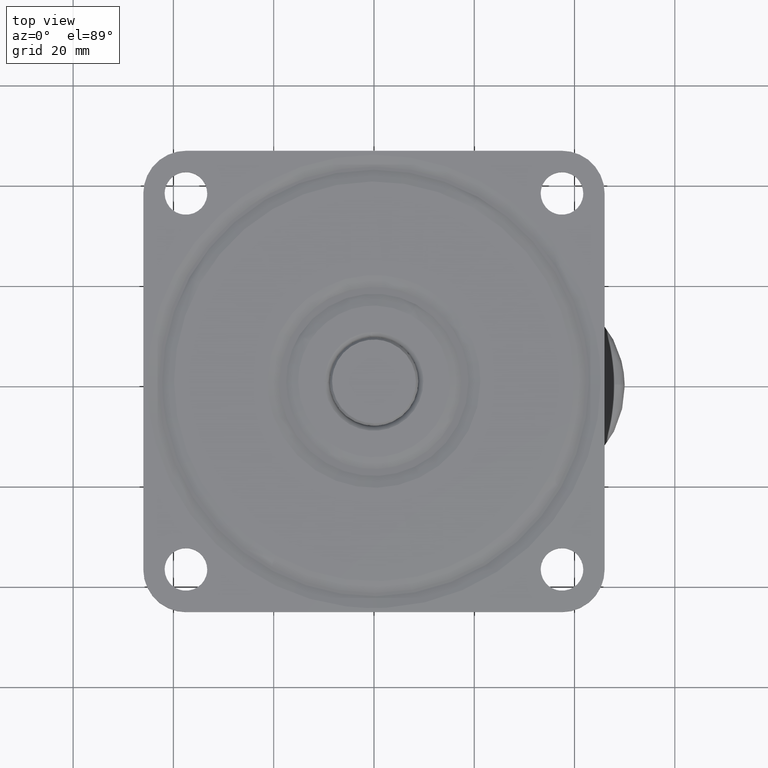
[diagram: clean part render]
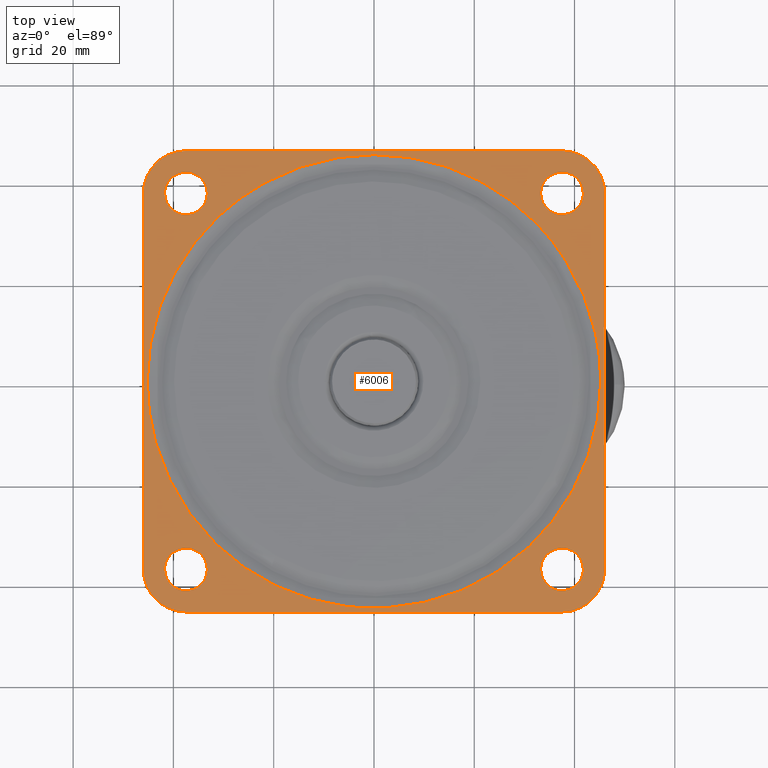
[diagram: same view with one face highlighted and labeled with its STEP entity id]
A machine part, top view. The second image highlights one B-rep face of the part: STEP entity #6006.
In plain terms, the highlighted face is a freeform B-spline surface patch.
Its self-contained STEP definition (entity closure, byte-faithful):
#3521=CARTESIAN_POINT('',(-38.001645497380359,33.279709512965013,-2.484500E-017));
#3522=VERTEX_POINT('',#3521);
#3523=CARTESIAN_POINT('',(-33.250000000000000,37.500000000000000,0.0));
#3524=VERTEX_POINT('',#3523);
#3525=CARTESIAN_POINT('',(-38.001645497380359,33.279709512965013,-2.484500E-017));
#3526=CARTESIAN_POINT('',(-37.751702508610684,33.250000000000000,0.0));
#3527=CARTESIAN_POINT('',(-37.500000000000000,33.250000000000000,0.0));
#3528=CARTESIAN_POINT('',(-33.250000000000007,33.250000000000007,0.0));
#3529=CARTESIAN_POINT('',(-33.250000000000000,37.500000000000000,0.0));
#3537=(BOUNDED_CURVE()B_SPLINE_CURVE(2,(#3525,#3526,#3527,#3528,#3529),.UNSPECIFIED.,.F.,.U.)B_SPLINE_CURVE_WITH_KNOTS((3,2,3),(0.229562473508506,0.250000000000000,0.500000000000000),.UNSPECIFIED.)CURVE()GEOMETRIC_REPRESENTATION_ITEM()RATIONAL_B_SPLINE_CURVE((0.956026754173894,0.976055948325284,1.0,0.707106781186548,1.0))REPRESENTATION_ITEM(''));
#3538=EDGE_CURVE('',#3522,#3524,#3537,.T.);
#3540=CARTESIAN_POINT('',(-37.240543706807827,41.742072893282597,-2.081668E-017));
#3541=VERTEX_POINT('',#3540);
#3542=CARTESIAN_POINT('',(-33.250000000000000,37.500000000000000,0.0));
#3543=CARTESIAN_POINT('',(-33.250000000000007,41.498000784030012,0.0));
#3544=CARTESIAN_POINT('',(-37.240543706807827,41.742072893282604,-2.081668E-017));
#3552=(BOUNDED_CURVE()B_SPLINE_CURVE(2,(#3542,#3543,#3544),.UNSPECIFIED.,.F.,.U.)B_SPLINE_CURVE_WITH_KNOTS((3,3),(0.500000000000000,0.739332962228218),.UNSPECIFIED.)CURVE()GEOMETRIC_REPRESENTATION_ITEM()RATIONAL_B_SPLINE_CURVE((1.0,0.719603993299275,0.976072041643733))REPRESENTATION_ITEM(''));
#3553=EDGE_CURVE('',#3524,#3541,#3552,.T.);
#3620=CARTESIAN_POINT('',(-41.749999999999993,37.500000000000000,0.0));
#3621=VERTEX_POINT('',#3620);
#3622=CARTESIAN_POINT('',(-41.749999999999993,37.500000000000000,0.0));
#3623=CARTESIAN_POINT('',(-41.749999999999993,33.725258264867257,0.0));
#3624=CARTESIAN_POINT('',(-38.001645497380366,33.279709512965020,-2.484500E-017));
#3632=(BOUNDED_CURVE()B_SPLINE_CURVE(2,(#3622,#3623,#3624),.UNSPECIFIED.,.F.,.U.)B_SPLINE_CURVE_WITH_KNOTS((3,3),(0.0,0.229562473508506),.UNSPECIFIED.)CURVE()GEOMETRIC_REPRESENTATION_ITEM()RATIONAL_B_SPLINE_CURVE((1.0,0.731050832861264,0.956026754173894))REPRESENTATION_ITEM(''));
#3633=EDGE_CURVE('',#3621,#3522,#3632,.T.);
#3667=CARTESIAN_POINT('',(-37.240543706807834,41.742072893282604,-2.081668E-017));
#3668=CARTESIAN_POINT('',(-37.370150755811487,41.749999999999993,0.0));
#3669=CARTESIAN_POINT('',(-37.500000000000000,41.749999999999993,0.0));
#3670=CARTESIAN_POINT('',(-41.750000000000000,41.750000000000000,0.0));
#3671=CARTESIAN_POINT('',(-41.749999999999993,37.500000000000000,0.0));
#3679=(BOUNDED_CURVE()B_SPLINE_CURVE(2,(#3667,#3668,#3669,#3670,#3671),.UNSPECIFIED.,.F.,.U.)B_SPLINE_CURVE_WITH_KNOTS((3,2,3),(0.739332962228218,0.750000000000000,1.0),.UNSPECIFIED.)CURVE()GEOMETRIC_REPRESENTATION_ITEM()RATIONAL_B_SPLINE_CURVE((0.976072041643731,0.987502787887272,1.0,0.707106781186548,1.0))REPRESENTATION_ITEM(''));
#3680=EDGE_CURVE('',#3541,#3621,#3679,.T.);
#3707=CARTESIAN_POINT('',(36.998354502619648,33.279709512965013,-2.484500E-017));
#3708=VERTEX_POINT('',#3707);
#3709=CARTESIAN_POINT('',(41.749999999999993,37.500000000000000,0.0));
#3710=VERTEX_POINT('',#3709);
#3711=CARTESIAN_POINT('',(36.998354502619648,33.279709512965013,-2.484500E-017));
#3712=CARTESIAN_POINT('',(37.248297491389316,33.250000000000000,0.0));
#3713=CARTESIAN_POINT('',(37.500000000000000,33.250000000000000,0.0));
#3714=CARTESIAN_POINT('',(41.750000000000000,33.250000000000007,0.0));
#3715=CARTESIAN_POINT('',(41.749999999999993,37.500000000000000,0.0));
#3723=(BOUNDED_CURVE()B_SPLINE_CURVE(2,(#3711,#3712,#3713,#3714,#3715),.UNSPECIFIED.,.F.,.U.)B_SPLINE_CURVE_WITH_KNOTS((3,2,3),(0.229562473508506,0.250000000000000,0.500000000000000),.UNSPECIFIED.)CURVE()GEOMETRIC_REPRESENTATION_ITEM()RATIONAL_B_SPLINE_CURVE((0.956026754173894,0.976055948325284,1.0,0.707106781186548,1.0))REPRESENTATION_ITEM(''));
#3724=EDGE_CURVE('',#3708,#3710,#3723,.T.);
#3726=CARTESIAN_POINT('',(37.759456293192173,41.742072893282597,-2.081668E-017));
#3727=VERTEX_POINT('',#3726);
#3728=CARTESIAN_POINT('',(41.749999999999993,37.500000000000000,0.0));
#3729=CARTESIAN_POINT('',(41.749999999999993,41.498000784030012,0.0));
#3730=CARTESIAN_POINT('',(37.759456293192173,41.742072893282604,-2.081668E-017));
#3738=(BOUNDED_CURVE()B_SPLINE_CURVE(2,(#3728,#3729,#3730),.UNSPECIFIED.,.F.,.U.)B_SPLINE_CURVE_WITH_KNOTS((3,3),(0.500000000000000,0.739332962228218),.UNSPECIFIED.)CURVE()GEOMETRIC_REPRESENTATION_ITEM()RATIONAL_B_SPLINE_CURVE((1.0,0.719603993299275,0.976072041643733))REPRESENTATION_ITEM(''));
#3739=EDGE_CURVE('',#3710,#3727,#3738,.T.);
#3806=CARTESIAN_POINT('',(33.250000000000000,37.500000000000000,0.0));
#3807=VERTEX_POINT('',#3806);
#3808=CARTESIAN_POINT('',(33.250000000000000,37.500000000000000,0.0));
#3809=CARTESIAN_POINT('',(33.250000000000000,33.725258264867243,0.0));
#3810=CARTESIAN_POINT('',(36.998354502619648,33.279709512965013,-2.484500E-017));
#3818=(BOUNDED_CURVE()B_SPLINE_CURVE(2,(#3808,#3809,#3810),.UNSPECIFIED.,.F.,.U.)B_SPLINE_CURVE_WITH_KNOTS((3,3),(0.0,0.229562473508506),.UNSPECIFIED.)CURVE()GEOMETRIC_REPRESENTATION_ITEM()RATIONAL_B_SPLINE_CURVE((1.0,0.731050832861263,0.956026754173894))REPRESENTATION_ITEM(''));
#3819=EDGE_CURVE('',#3807,#3708,#3818,.T.);
#3853=CARTESIAN_POINT('',(37.759456293192180,41.742072893282604,-2.081668E-017));
#3854=CARTESIAN_POINT('',(37.629849244188506,41.749999999999993,0.0));
#3855=CARTESIAN_POINT('',(37.500000000000000,41.749999999999993,0.0));
#3856=CARTESIAN_POINT('',(33.250000000000007,41.750000000000000,0.0));
#3857=CARTESIAN_POINT('',(33.250000000000000,37.500000000000000,0.0));
#3865=(BOUNDED_CURVE()B_SPLINE_CURVE(2,(#3853,#3854,#3855,#3856,#3857),.UNSPECIFIED.,.F.,.U.)B_SPLINE_CURVE_WITH_KNOTS((3,2,3),(0.739332962228218,0.750000000000000,1.0),.UNSPECIFIED.)CURVE()GEOMETRIC_REPRESENTATION_ITEM()RATIONAL_B_SPLINE_CURVE((0.976072041643731,0.987502787887272,1.0,0.707106781186548,1.0))REPRESENTATION_ITEM(''));
#3866=EDGE_CURVE('',#3727,#3807,#3865,.T.);
#3893=CARTESIAN_POINT('',(36.998354502619648,-41.720290487034987,-2.484500E-017));
#3894=VERTEX_POINT('',#3893);
#3895=CARTESIAN_POINT('',(41.749999999999993,-37.500000000000000,0.0));
#3896=VERTEX_POINT('',#3895);
#3897=CARTESIAN_POINT('',(36.998354502619648,-41.720290487034987,-2.484500E-017));
#3898=CARTESIAN_POINT('',(37.248297491389302,-41.749999999999993,0.0));
#3899=CARTESIAN_POINT('',(37.500000000000000,-41.749999999999993,0.0));
#3900=CARTESIAN_POINT('',(41.750000000000000,-41.750000000000000,0.0));
#3901=CARTESIAN_POINT('',(41.749999999999993,-37.500000000000000,0.0));
#3909=(BOUNDED_CURVE()B_SPLINE_CURVE(2,(#3897,#3898,#3899,#3900,#3901),.UNSPECIFIED.,.F.,.U.)B_SPLINE_CURVE_WITH_KNOTS((3,2,3),(0.229562473508506,0.250000000000000,0.500000000000000),.UNSPECIFIED.)CURVE()GEOMETRIC_REPRESENTATION_ITEM()RATIONAL_B_SPLINE_CURVE((0.956026754173894,0.976055948325284,1.0,0.707106781186548,1.0))REPRESENTATION_ITEM(''));
#3910=EDGE_CURVE('',#3894,#3896,#3909,.T.);
#3912=CARTESIAN_POINT('',(37.759456293192173,-33.257927106717403,-2.081668E-017));
#3913=VERTEX_POINT('',#3912);
#3914=CARTESIAN_POINT('',(41.749999999999993,-37.500000000000000,0.0));
#3915=CARTESIAN_POINT('',(41.749999999999993,-33.501999215969995,0.0));
#3916=CARTESIAN_POINT('',(37.759456293192173,-33.257927106717403,-2.081668E-017));
#3924=(BOUNDED_CURVE()B_SPLINE_CURVE(2,(#3914,#3915,#3916),.UNSPECIFIED.,.F.,.U.)B_SPLINE_CURVE_WITH_KNOTS((3,3),(0.500000000000000,0.739332962228218),.UNSPECIFIED.)CURVE()GEOMETRIC_REPRESENTATION_ITEM()RATIONAL_B_SPLINE_CURVE((1.0,0.719603993299275,0.976072041643733))REPRESENTATION_ITEM(''));
#3925=EDGE_CURVE('',#3896,#3913,#3924,.T.);
#3992=CARTESIAN_POINT('',(33.250000000000000,-37.500000000000000,0.0));
#3993=VERTEX_POINT('',#3992);
#3994=CARTESIAN_POINT('',(33.250000000000000,-37.500000000000000,0.0));
#3995=CARTESIAN_POINT('',(33.250000000000000,-41.274741735132736,0.0));
#3996=CARTESIAN_POINT('',(36.998354502619655,-41.720290487034987,-2.484500E-017));
#4004=(BOUNDED_CURVE()B_SPLINE_CURVE(2,(#3994,#3995,#3996),.UNSPECIFIED.,.F.,.U.)B_SPLINE_CURVE_WITH_KNOTS((3,3),(0.0,0.229562473508506),.UNSPECIFIED.)CURVE()GEOMETRIC_REPRESENTATION_ITEM()RATIONAL_B_SPLINE_CURVE((1.0,0.731050832861263,0.956026754173894))REPRESENTATION_ITEM(''));
#4005=EDGE_CURVE('',#3993,#3894,#4004,.T.);
#4039=CARTESIAN_POINT('',(37.759456293192173,-33.257927106717403,-2.081668E-017));
#4040=CARTESIAN_POINT('',(37.629849244188506,-33.249999999999993,0.0));
#4041=CARTESIAN_POINT('',(37.500000000000000,-33.250000000000000,0.0));
#4042=CARTESIAN_POINT('',(33.250000000000007,-33.250000000000007,0.0));
#4043=CARTESIAN_POINT('',(33.250000000000000,-37.500000000000000,0.0));
#4051=(BOUNDED_CURVE()B_SPLINE_CURVE(2,(#4039,#4040,#4041,#4042,#4043),.UNSPECIFIED.,.F.,.U.)B_SPLINE_CURVE_WITH_KNOTS((3,2,3),(0.739332962228217,0.750000000000000,1.0),.UNSPECIFIED.)CURVE()GEOMETRIC_REPRESENTATION_ITEM()RATIONAL_B_SPLINE_CURVE((0.976072041643731,0.987502787887272,1.0,0.707106781186548,1.0))REPRESENTATION_ITEM(''));
#4052=EDGE_CURVE('',#3913,#3993,#4051,.T.);
#4079=CARTESIAN_POINT('',(-38.001645497380352,-41.720290487034987,-2.484500E-017));
#4080=VERTEX_POINT('',#4079);
#4081=CARTESIAN_POINT('',(-33.250000000000000,-37.500000000000000,0.0));
#4082=VERTEX_POINT('',#4081);
#4083=CARTESIAN_POINT('',(-38.001645497380352,-41.720290487034994,-2.484500E-017));
#4084=CARTESIAN_POINT('',(-37.751702508610691,-41.750000000000007,0.0));
#4085=CARTESIAN_POINT('',(-37.500000000000000,-41.749999999999993,0.0));
#4086=CARTESIAN_POINT('',(-33.250000000000007,-41.750000000000000,0.0));
#4087=CARTESIAN_POINT('',(-33.250000000000000,-37.500000000000000,0.0));
#4095=(BOUNDED_CURVE()B_SPLINE_CURVE(2,(#4083,#4084,#4085,#4086,#4087),.UNSPECIFIED.,.F.,.U.)B_SPLINE_CURVE_WITH_KNOTS((3,2,3),(0.229562473508506,0.250000000000000,0.500000000000000),.UNSPECIFIED.)CURVE()GEOMETRIC_REPRESENTATION_ITEM()RATIONAL_B_SPLINE_CURVE((0.956026754173895,0.976055948325285,1.0,0.707106781186548,1.0))REPRESENTATION_ITEM(''));
#4096=EDGE_CURVE('',#4080,#4082,#4095,.T.);
#4098=CARTESIAN_POINT('',(-37.240543706807827,-33.257927106717403,-2.081668E-017));
#4099=VERTEX_POINT('',#4098);
#4100=CARTESIAN_POINT('',(-33.250000000000000,-37.500000000000000,0.0));
#4101=CARTESIAN_POINT('',(-33.250000000000007,-33.501999215969995,0.0));
#4102=CARTESIAN_POINT('',(-37.240543706807827,-33.257927106717403,-2.081668E-017));
#4110=(BOUNDED_CURVE()B_SPLINE_CURVE(2,(#4100,#4101,#4102),.UNSPECIFIED.,.F.,.U.)B_SPLINE_CURVE_WITH_KNOTS((3,3),(0.500000000000000,0.739332962228218),.UNSPECIFIED.)CURVE()GEOMETRIC_REPRESENTATION_ITEM()RATIONAL_B_SPLINE_CURVE((1.0,0.719603993299275,0.976072041643733))REPRESENTATION_ITEM(''));
#4111=EDGE_CURVE('',#4082,#4099,#4110,.T.);
#4178=CARTESIAN_POINT('',(-41.749999999999993,-37.500000000000000,0.0));
#4179=VERTEX_POINT('',#4178);
#4180=CARTESIAN_POINT('',(-41.749999999999993,-37.500000000000000,0.0));
#4181=CARTESIAN_POINT('',(-41.750000000000000,-41.274741735132750,0.0));
#4182=CARTESIAN_POINT('',(-38.001645497380352,-41.720290487034994,-2.484500E-017));
#4190=(BOUNDED_CURVE()B_SPLINE_CURVE(2,(#4180,#4181,#4182),.UNSPECIFIED.,.F.,.U.)B_SPLINE_CURVE_WITH_KNOTS((3,3),(0.0,0.229562473508506),.UNSPECIFIED.)CURVE()GEOMETRIC_REPRESENTATION_ITEM()RATIONAL_B_SPLINE_CURVE((1.0,0.731050832861263,0.956026754173895))REPRESENTATION_ITEM(''));
#4191=EDGE_CURVE('',#4179,#4080,#4190,.T.);
#4225=CARTESIAN_POINT('',(-37.240543706807834,-33.257927106717403,-2.081668E-017));
#4226=CARTESIAN_POINT('',(-37.370150755811487,-33.250000000000000,0.0));
#4227=CARTESIAN_POINT('',(-37.500000000000000,-33.250000000000000,0.0));
#4228=CARTESIAN_POINT('',(-41.750000000000000,-33.250000000000007,0.0));
#4229=CARTESIAN_POINT('',(-41.749999999999993,-37.500000000000000,0.0));
#4237=(BOUNDED_CURVE()B_SPLINE_CURVE(2,(#4225,#4226,#4227,#4228,#4229),.UNSPECIFIED.,.F.,.U.)B_SPLINE_CURVE_WITH_KNOTS((3,2,3),(0.739332962228218,0.750000000000000,1.0),.UNSPECIFIED.)CURVE()GEOMETRIC_REPRESENTATION_ITEM()RATIONAL_B_SPLINE_CURVE((0.976072041643731,0.987502787887272,1.0,0.707106781186548,1.0))REPRESENTATION_ITEM(''));
#4238=EDGE_CURVE('',#4099,#4179,#4237,.T.);
#4862=CARTESIAN_POINT('',(38.319923120380160,24.018164280611082,-7.854863E-016));
#4863=VERTEX_POINT('',#4862);
#4864=CARTESIAN_POINT('',(45.224868417407613,0.0,0.0));
#4865=VERTEX_POINT('',#4864);
#4866=CARTESIAN_POINT('',(38.319923120380167,24.018164280611078,-7.854863E-016));
#4867=CARTESIAN_POINT('',(45.224868417407599,13.001628219143482,0.0));
#4868=CARTESIAN_POINT('',(45.224868417407613,0.0,0.0));
#4876=(BOUNDED_CURVE()B_SPLINE_CURVE(2,(#4866,#4867,#4868),.UNSPECIFIED.,.F.,.U.)B_SPLINE_CURVE_WITH_KNOTS((3,3),(0.409173271053749,0.500000000000000),.UNSPECIFIED.)CURVE()GEOMETRIC_REPRESENTATION_ITEM()RATIONAL_B_SPLINE_CURVE((0.864498809754002,0.893589868018542,1.0))REPRESENTATION_ITEM(''));
#4877=EDGE_CURVE('',#4863,#4865,#4876,.T.);
#4941=CARTESIAN_POINT('',(-21.787246520518000,39.630854297494061,-8.268803E-016));
#4942=VERTEX_POINT('',#4941);
#4956=CARTESIAN_POINT('',(-45.224868417407613,0.0,0.0));
#4957=VERTEX_POINT('',#4956);
#4958=CARTESIAN_POINT('',(-45.224868417407613,0.0,0.0));
#4959=CARTESIAN_POINT('',(-45.224868417407606,26.745912624198343,0.0));
#4960=CARTESIAN_POINT('',(-21.787246520518003,39.630854297494061,-8.268803E-016));
#4968=(BOUNDED_CURVE()B_SPLINE_CURVE(2,(#4958,#4959,#4960),.UNSPECIFIED.,.F.,.U.)B_SPLINE_CURVE_WITH_KNOTS((3,3),(0.0,0.167949183896119),.UNSPECIFIED.)CURVE()GEOMETRIC_REPRESENTATION_ITEM()RATIONAL_B_SPLINE_CURVE((1.0,0.803235291726293,0.870842360845602))REPRESENTATION_ITEM(''));
#4969=EDGE_CURVE('',#4957,#4942,#4968,.T.);
#4971=CARTESIAN_POINT('',(45.224868417407613,0.0,0.0));
#4972=CARTESIAN_POINT('',(45.224868417407599,-45.224868417407599,0.0));
#4973=CARTESIAN_POINT('',(0.0,-45.224868417407613,0.0));
#4974=CARTESIAN_POINT('',(-45.224868417407599,-45.224868417407599,0.0));
#4975=CARTESIAN_POINT('',(-45.224868417407613,0.0,0.0));
#4983=(BOUNDED_CURVE()B_SPLINE_CURVE(2,(#4971,#4972,#4973,#4974,#4975),.UNSPECIFIED.,.F.,.U.)B_SPLINE_CURVE_WITH_KNOTS((3,2,3),(0.500000000000000,0.750000000000000,1.0),.UNSPECIFIED.)CURVE()GEOMETRIC_REPRESENTATION_ITEM()RATIONAL_B_SPLINE_CURVE((1.0,0.707106781186548,1.0,0.707106781186548,1.0))REPRESENTATION_ITEM(''));
#4984=EDGE_CURVE('',#4865,#4957,#4983,.T.);
#5006=CARTESIAN_POINT('',(-21.787246520518000,39.630854297494068,-8.268803E-016));
#5007=CARTESIAN_POINT('',(-11.611772613053358,45.224868417407606,0.0));
#5008=CARTESIAN_POINT('',(0.0,45.224868417407613,0.0));
#5009=CARTESIAN_POINT('',(25.027983514883378,45.224868417407606,0.0));
#5010=CARTESIAN_POINT('',(38.319923120380167,24.018164280611078,-7.854863E-016));
#5018=(BOUNDED_CURVE()B_SPLINE_CURVE(2,(#5006,#5007,#5008,#5009,#5010),.UNSPECIFIED.,.F.,.U.)B_SPLINE_CURVE_WITH_KNOTS((3,2,3),(0.167949183896119,0.250000000000000,0.409173271053749),.UNSPECIFIED.)CURVE()GEOMETRIC_REPRESENTATION_ITEM()RATIONAL_B_SPLINE_CURVE((0.870842360845602,0.903871489460255,1.0,0.813516913168005,0.864498809754002))REPRESENTATION_ITEM(''));
#5019=EDGE_CURVE('',#4942,#4863,#5018,.T.);
#5881=CARTESIAN_POINT('',(-50.595399821686172,50.595399821686172,0.0));
#5882=CARTESIAN_POINT('',(50.595402289318450,50.595399821686172,0.0));
#5883=CARTESIAN_POINT('',(-50.595399821686172,-50.595402289318457,0.0));
#5884=CARTESIAN_POINT('',(50.595402289318450,-50.595402289318457,0.0));
#5885=B_SPLINE_SURFACE_WITH_KNOTS('',1,1,((#5881,#5883),(#5882,#5884)),.UNSPECIFIED.,.F.,.F.,.U.,(2,2),(2,2),(0.0,101.190802111004600),(0.0,101.190802111004600),.UNSPECIFIED.);
#5886=CARTESIAN_POINT('',(37.500000000000000,46.0,0.0));
#5887=VERTEX_POINT('',#5886);
#5888=CARTESIAN_POINT('',(-37.500000000000000,46.0,0.0));
#5889=VERTEX_POINT('',#5888);
#5890=CARTESIAN_POINT('',(37.500000000000000,46.0,0.0));
#5891=CARTESIAN_POINT('',(-37.500000000000000,46.0,0.0));
#5892=QUASI_UNIFORM_CURVE('',1,(#5890,#5891),.UNSPECIFIED.,.F.,.U.);
#5893=EDGE_CURVE('',#5887,#5889,#5892,.T.);
#5894=ORIENTED_EDGE('',*,*,#5893,.T.);
#5895=CARTESIAN_POINT('',(-46.0,37.500000000000000,0.0));
#5896=VERTEX_POINT('',#5895);
#5897=CARTESIAN_POINT('',(-37.500000000000000,46.0,0.0));
#5898=CARTESIAN_POINT('',(-46.000000000000007,46.000000000000007,0.0));
#5899=CARTESIAN_POINT('',(-46.0,37.500000000000000,0.0));
#5907=(BOUNDED_CURVE()B_SPLINE_CURVE(2,(#5897,#5898,#5899),.UNSPECIFIED.,.F.,.U.)CURVE()GEOMETRIC_REPRESENTATION_ITEM()QUASI_UNIFORM_CURVE()RATIONAL_B_SPLINE_CURVE((1.0,0.707106781186548,1.0))REPRESENTATION_ITEM(''));
#5908=EDGE_CURVE('',#5889,#5896,#5907,.T.);
#5909=ORIENTED_EDGE('',*,*,#5908,.T.);
#5910=CARTESIAN_POINT('',(-46.0,-37.500000000000000,0.0));
#5911=VERTEX_POINT('',#5910);
#5912=CARTESIAN_POINT('',(-46.0,37.500000000000000,0.0));
#5913=CARTESIAN_POINT('',(-46.0,-37.500000000000000,0.0));
#5914=QUASI_UNIFORM_CURVE('',1,(#5912,#5913),.UNSPECIFIED.,.F.,.U.);
#5915=EDGE_CURVE('',#5896,#5911,#5914,.T.);
#5916=ORIENTED_EDGE('',*,*,#5915,.T.);
#5917=CARTESIAN_POINT('',(-37.500000000000000,-46.0,0.0));
#5918=VERTEX_POINT('',#5917);
#5919=CARTESIAN_POINT('',(-46.0,-37.500000000000000,0.0));
#5920=CARTESIAN_POINT('',(-46.000000000000007,-46.000000000000007,0.0));
#5921=CARTESIAN_POINT('',(-37.500000000000000,-46.0,0.0));
#5929=(BOUNDED_CURVE()B_SPLINE_CURVE(2,(#5919,#5920,#5921),.UNSPECIFIED.,.F.,.U.)CURVE()GEOMETRIC_REPRESENTATION_ITEM()QUASI_UNIFORM_CURVE()RATIONAL_B_SPLINE_CURVE((1.0,0.707106781186548,1.0))REPRESENTATION_ITEM(''));
#5930=EDGE_CURVE('',#5911,#5918,#5929,.T.);
#5931=ORIENTED_EDGE('',*,*,#5930,.T.);
#5932=CARTESIAN_POINT('',(37.500000000000000,-46.0,0.0));
#5933=VERTEX_POINT('',#5932);
#5934=CARTESIAN_POINT('',(-37.500000000000000,-46.0,0.0));
#5935=CARTESIAN_POINT('',(37.500000000000000,-46.0,0.0));
#5936=QUASI_UNIFORM_CURVE('',1,(#5934,#5935),.UNSPECIFIED.,.F.,.U.);
#5937=EDGE_CURVE('',#5918,#5933,#5936,.T.);
#5938=ORIENTED_EDGE('',*,*,#5937,.T.);
#5939=CARTESIAN_POINT('',(46.0,-37.500000000000000,0.0));
#5940=VERTEX_POINT('',#5939);
#5941=CARTESIAN_POINT('',(37.500000000000000,-46.0,0.0));
#5942=CARTESIAN_POINT('',(46.000000000000007,-46.000000000000007,0.0));
#5943=CARTESIAN_POINT('',(46.0,-37.500000000000000,0.0));
#5951=(BOUNDED_CURVE()B_SPLINE_CURVE(2,(#5941,#5942,#5943),.UNSPECIFIED.,.F.,.U.)CURVE()GEOMETRIC_REPRESENTATION_ITEM()QUASI_UNIFORM_CURVE()RATIONAL_B_SPLINE_CURVE((1.0,0.707106781186548,1.0))REPRESENTATION_ITEM(''));
#5952=EDGE_CURVE('',#5933,#5940,#5951,.T.);
#5953=ORIENTED_EDGE('',*,*,#5952,.T.);
#5954=CARTESIAN_POINT('',(46.0,37.500000000000000,0.0));
#5955=VERTEX_POINT('',#5954);
#5956=CARTESIAN_POINT('',(46.0,-37.500000000000000,0.0));
#5957=CARTESIAN_POINT('',(46.0,37.500000000000000,0.0));
#5958=QUASI_UNIFORM_CURVE('',1,(#5956,#5957),.UNSPECIFIED.,.F.,.U.);
#5959=EDGE_CURVE('',#5940,#5955,#5958,.T.);
#5960=ORIENTED_EDGE('',*,*,#5959,.T.);
#5961=CARTESIAN_POINT('',(46.0,37.500000000000000,0.0));
#5962=CARTESIAN_POINT('',(46.000000000000007,46.000000000000007,0.0));
#5963=CARTESIAN_POINT('',(37.500000000000000,46.0,0.0));
#5971=(BOUNDED_CURVE()B_SPLINE_CURVE(2,(#5961,#5962,#5963),.UNSPECIFIED.,.F.,.U.)CURVE()GEOMETRIC_REPRESENTATION_ITEM()QUASI_UNIFORM_CURVE()RATIONAL_B_SPLINE_CURVE((1.0,0.707106781186548,1.0))REPRESENTATION_ITEM(''));
#5972=EDGE_CURVE('',#5955,#5887,#5971,.T.);
#5973=ORIENTED_EDGE('',*,*,#5972,.T.);
#5974=EDGE_LOOP('',(#5894,#5909,#5916,#5931,#5938,#5953,#5960,#5973));
#5975=FACE_OUTER_BOUND('',#5974,.T.);
#5976=ORIENTED_EDGE('',*,*,#4984,.T.);
#5977=ORIENTED_EDGE('',*,*,#4969,.T.);
#5978=ORIENTED_EDGE('',*,*,#5019,.T.);
#5979=ORIENTED_EDGE('',*,*,#4877,.T.);
#5980=EDGE_LOOP('',(#5976,#5977,#5978,#5979));
#5981=FACE_BOUND('',#5980,.T.);
#5982=ORIENTED_EDGE('',*,*,#4111,.F.);
#5983=ORIENTED_EDGE('',*,*,#4096,.F.);
#5984=ORIENTED_EDGE('',*,*,#4191,.F.);
#5985=ORIENTED_EDGE('',*,*,#4238,.F.);
#5986=EDGE_LOOP('',(#5982,#5983,#5984,#5985));
#5987=FACE_BOUND('',#5986,.T.);
#5988=ORIENTED_EDGE('',*,*,#3925,.F.);
#5989=ORIENTED_EDGE('',*,*,#3910,.F.);
#5990=ORIENTED_EDGE('',*,*,#4005,.F.);
#5991=ORIENTED_EDGE('',*,*,#4052,.F.);
#5992=EDGE_LOOP('',(#5988,#5989,#5990,#5991));
#5993=FACE_BOUND('',#5992,.T.);
#5994=ORIENTED_EDGE('',*,*,#3739,.F.);
#5995=ORIENTED_EDGE('',*,*,#3724,.F.);
#5996=ORIENTED_EDGE('',*,*,#3819,.F.);
#5997=ORIENTED_EDGE('',*,*,#3866,.F.);
#5998=EDGE_LOOP('',(#5994,#5995,#5996,#5997));
#5999=FACE_BOUND('',#5998,.T.);
#6000=ORIENTED_EDGE('',*,*,#3553,.F.);
#6001=ORIENTED_EDGE('',*,*,#3538,.F.);
#6002=ORIENTED_EDGE('',*,*,#3633,.F.);
#6003=ORIENTED_EDGE('',*,*,#3680,.F.);
#6004=EDGE_LOOP('',(#6000,#6001,#6002,#6003));
#6005=FACE_BOUND('',#6004,.T.);
#6006=ADVANCED_FACE('',(#5975,#5981,#5987,#5993,#5999,#6005),#5885,.F.);